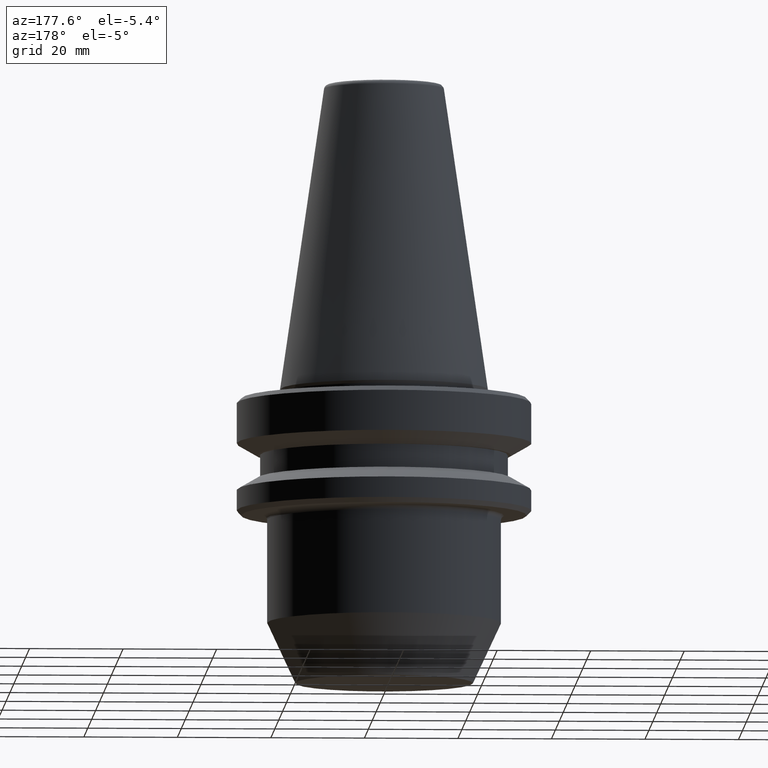
[diagram: clean part render]
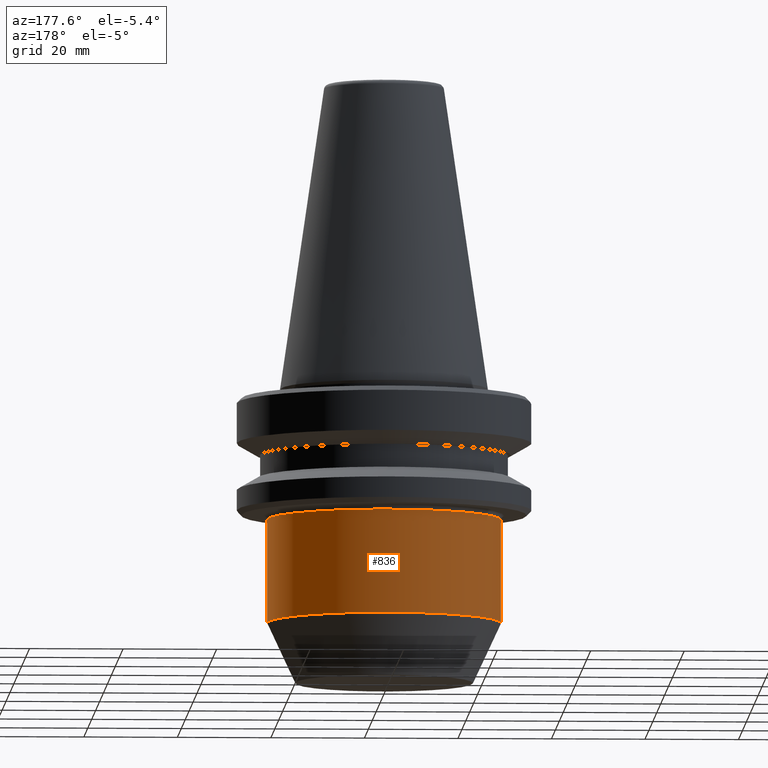
[diagram: same view with one face highlighted and labeled with its STEP entity id]
A machine part, auxiliary view. The second image highlights one B-rep face of the part: STEP entity #836.
In plain terms, the highlighted cylindrical surface (partial cylindrical patch) has radius 25 mm, axis along (-0, -0, 1).
Its self-contained STEP definition (entity closure, byte-faithful):
#39 = AXIS2_PLACEMENT_3D ( 'NONE', #911, #980, #380 ) ;
#61 = CIRCLE ( 'NONE', #88, 25.00000000000000000 ) ;
#66 = EDGE_CURVE ( 'NONE', #992, #545, #61, .T. ) ;
#88 = AXIS2_PLACEMENT_3D ( 'NONE', #158, #406, #816 ) ;
#92 = AXIS2_PLACEMENT_3D ( 'NONE', #197, #746, #284 ) ;
#106 = ORIENTED_EDGE ( 'NONE', *, *, #928, .T. ) ;
#118 = DIRECTION ( 'NONE',  ( -0.0000000000000000000, -0.0000000000000000000, 1.000000000000000000 ) ) ;
#158 = CARTESIAN_POINT ( 'NONE',  ( 0.0000000000000000000, 0.0000000000000000000, -49.44424526528276700 ) ) ;
#197 = CARTESIAN_POINT ( 'NONE',  ( 0.0000000000000000000, 0.0000000000000000000, -27.31128678844368800 ) ) ;
#269 = CIRCLE ( 'NONE', #92, 25.00000000000000000 ) ;
#277 = VERTEX_POINT ( 'NONE', #448 ) ;
#284 = DIRECTION ( 'NONE',  ( 1.000000000000000000, 0.0000000000000000000, 0.0000000000000000000 ) ) ;
#355 = DIRECTION ( 'NONE',  ( -0.0000000000000000000, -0.0000000000000000000, 1.000000000000000000 ) ) ;
#374 = LINE ( 'NONE', #625, #973 ) ;
#380 = DIRECTION ( 'NONE',  ( 1.000000000000000000, 0.0000000000000000000, 0.0000000000000000000 ) ) ;
#386 = VERTEX_POINT ( 'NONE', #872 ) ;
#406 = DIRECTION ( 'NONE',  ( -0.0000000000000000000, -0.0000000000000000000, 1.000000000000000000 ) ) ;
#448 = CARTESIAN_POINT ( 'NONE',  ( 25.00000000000000000, 0.0000000000000000000, -27.31128678844368800 ) ) ;
#545 = VERTEX_POINT ( 'NONE', #600 ) ;
#550 = CARTESIAN_POINT ( 'NONE',  ( 25.00000000000000000, 0.0000000000000000000, -49.44424526528276700 ) ) ;
#595 = ORIENTED_EDGE ( 'NONE', *, *, #767, .F. ) ;
#596 = ORIENTED_EDGE ( 'NONE', *, *, #832, .F. ) ;
#600 = CARTESIAN_POINT ( 'NONE',  ( -25.00000000000000000, 3.061616997868383000E-015, -49.44424526528276700 ) ) ;
#613 = VECTOR ( 'NONE', #355, 1000.000000000000000 ) ;
#625 = CARTESIAN_POINT ( 'NONE',  ( -25.00000000000000000, 3.061616997868383000E-015, 82.74845858742440900 ) ) ;
#667 = FACE_OUTER_BOUND ( 'NONE', #748, .T. ) ;
#746 = DIRECTION ( 'NONE',  ( -0.0000000000000000000, -0.0000000000000000000, 1.000000000000000000 ) ) ;
#748 = EDGE_LOOP ( 'NONE', ( #834, #106, #596, #595 ) ) ;
#767 = EDGE_CURVE ( 'NONE', #992, #277, #1009, .T. ) ;
#804 = CARTESIAN_POINT ( 'NONE',  ( 25.00000000000000000, 0.0000000000000000000, 82.74845858742440900 ) ) ;
#816 = DIRECTION ( 'NONE',  ( 1.000000000000000000, 0.0000000000000000000, 0.0000000000000000000 ) ) ;
#832 = EDGE_CURVE ( 'NONE', #277, #386, #269, .T. ) ;
#834 = ORIENTED_EDGE ( 'NONE', *, *, #66, .T. ) ;
#836 = ADVANCED_FACE ( 'NONE', ( #667 ), #1036, .T. ) ;
#872 = CARTESIAN_POINT ( 'NONE',  ( -25.00000000000000000, 3.061616997868383000E-015, -27.31128678844368800 ) ) ;
#911 = CARTESIAN_POINT ( 'NONE',  ( 0.0000000000000000000, 0.0000000000000000000, 82.74845858742440900 ) ) ;
#928 = EDGE_CURVE ( 'NONE', #545, #386, #374, .T. ) ;
#973 = VECTOR ( 'NONE', #118, 1000.000000000000000 ) ;
#980 = DIRECTION ( 'NONE',  ( -0.0000000000000000000, -0.0000000000000000000, 1.000000000000000000 ) ) ;
#992 = VERTEX_POINT ( 'NONE', #550 ) ;
#1009 = LINE ( 'NONE', #804, #613 ) ;
#1036 = CYLINDRICAL_SURFACE ( 'NONE', #39, 25.00000000000000000 ) ;